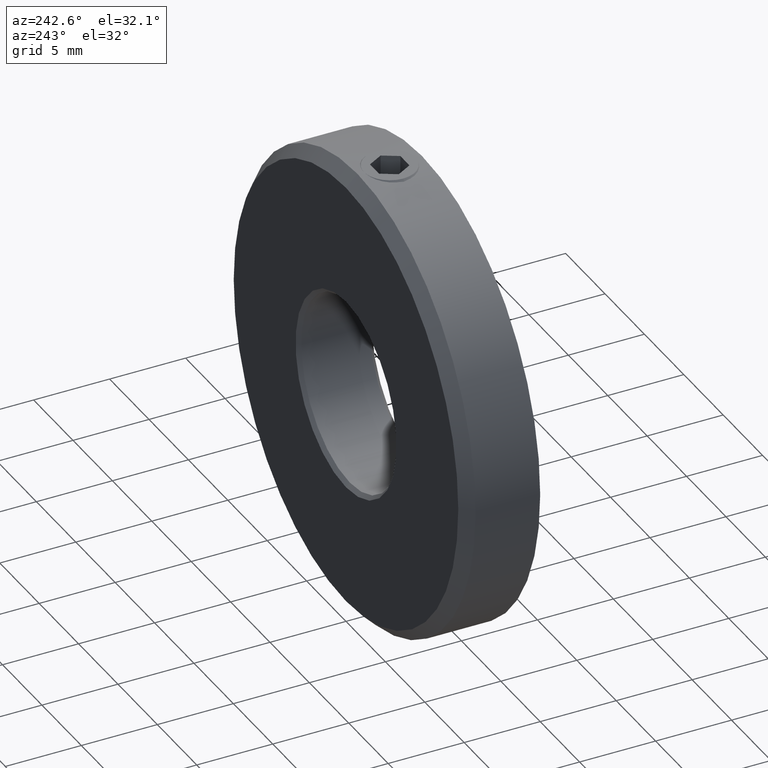
[diagram: clean part render]
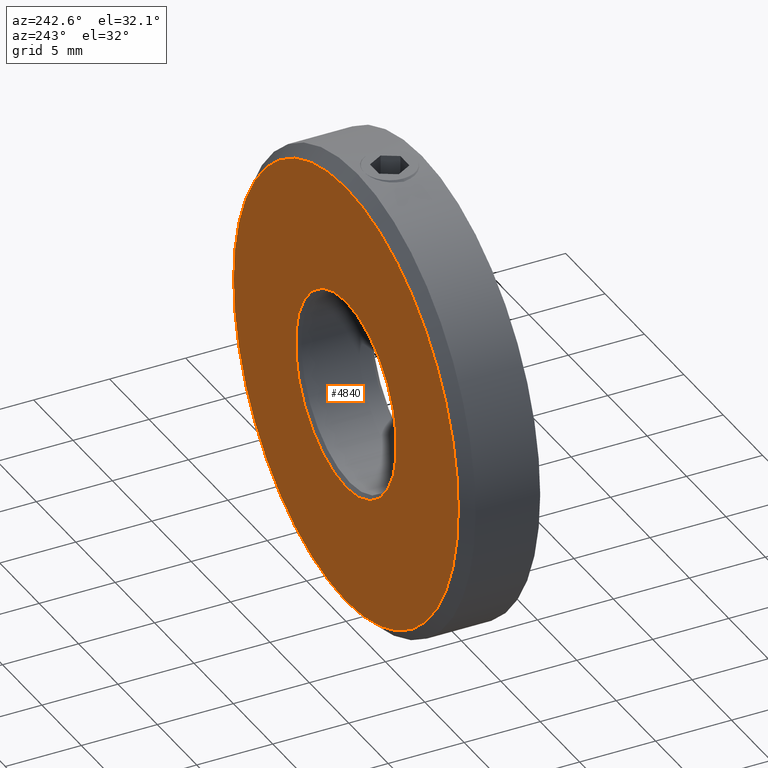
[diagram: same view with one face highlighted and labeled with its STEP entity id]
A machine part, auxiliary view. The second image highlights one B-rep face of the part: STEP entity #4840.
In plain terms, the highlighted planar face has unit normal (0, 1, 0).
Its self-contained STEP definition (entity closure, byte-faithful):
#340 = FACE_BOUND ( 'NONE', #14716, .T. ) ;
#385 = DIRECTION ( 'NONE',  ( 0.000000000000000000, 1.000000000000000000, 0.000000000000000000 ) ) ;
#521 = DIRECTION ( 'NONE',  ( 0.000000000000000000, 0.000000000000000000, 1.000000000000000000 ) ) ;
#536 = DIRECTION ( 'NONE',  ( -0.000000000000000000, -1.000000000000000000, -0.000000000000000000 ) ) ;
#550 = ORIENTED_EDGE ( 'NONE', *, *, #15102, .T. ) ;
#815 = ORIENTED_EDGE ( 'NONE', *, *, #12443, .T. ) ;
#898 = FACE_OUTER_BOUND ( 'NONE', #7330, .T. ) ;
#1017 = DIRECTION ( 'NONE',  ( 0.000000000000000000, 0.000000000000000000, 1.000000000000000000 ) ) ;
#1114 = CARTESIAN_POINT ( 'NONE',  ( 0.000000000000000000, 5.000000000000000000, 0.000000000000000000 ) ) ;
#1285 = ORIENTED_EDGE ( 'NONE', *, *, #3744, .T. ) ;
#1970 = CARTESIAN_POINT ( 'NONE',  ( 0.000000000000000000, 5.000000000000000000, 6.400000000000003020 ) ) ;
#2695 = DIRECTION ( 'NONE',  ( 0.000000000000000000, -0.000000000000000000, 1.000000000000000000 ) ) ;
#2995 = VERTEX_POINT ( 'NONE', #9603 ) ;
#3744 = EDGE_CURVE ( 'NONE', #9450, #13257, #12547, .T. ) ;
#4840 = ADVANCED_FACE ( 'NONE', ( #340, #898 ), #13258, .T. ) ;
#5179 = CARTESIAN_POINT ( 'NONE',  ( 0.000000000000000000, 5.000000000000000000, 0.000000000000000000 ) ) ;
#5351 = AXIS2_PLACEMENT_3D ( 'NONE', #13288, #13183, #521 ) ;
#5581 = AXIS2_PLACEMENT_3D ( 'NONE', #14533, #385, #2695 ) ;
#6170 = AXIS2_PLACEMENT_3D ( 'NONE', #7153, #10673, #13078 ) ;
#7153 = CARTESIAN_POINT ( 'NONE',  ( 0.000000000000000000, 5.000000000000000000, 0.000000000000000000 ) ) ;
#7330 = EDGE_LOOP ( 'NONE', ( #550, #815 ) ) ;
#7566 = AXIS2_PLACEMENT_3D ( 'NONE', #1114, #13768, #1017 ) ;
#7613 = CIRCLE ( 'NONE', #7566, 14.25000000000000533 ) ;
#8006 = AXIS2_PLACEMENT_3D ( 'NONE', #5179, #536, #8735 ) ;
#8735 = DIRECTION ( 'NONE',  ( 0.000000000000000000, 0.000000000000000000, 1.000000000000000000 ) ) ;
#9118 = CARTESIAN_POINT ( 'NONE',  ( 7.837739514543063879E-16, 5.000000000000000000, -6.400000000000003020 ) ) ;
#9450 = VERTEX_POINT ( 'NONE', #9118 ) ;
#9603 = CARTESIAN_POINT ( 'NONE',  ( 0.000000000000000000, 5.000000000000000000, -14.25000000000000533 ) ) ;
#10673 = DIRECTION ( 'NONE',  ( -0.000000000000000000, -1.000000000000000000, -0.000000000000000000 ) ) ;
#12310 = CIRCLE ( 'NONE', #5351, 14.25000000000000533 ) ;
#12430 = ORIENTED_EDGE ( 'NONE', *, *, #13448, .T. ) ;
#12443 = EDGE_CURVE ( 'NONE', #12827, #2995, #7613, .T. ) ;
#12547 = CIRCLE ( 'NONE', #6170, 6.400000000000003020 ) ;
#12827 = VERTEX_POINT ( 'NONE', #14737 ) ;
#13078 = DIRECTION ( 'NONE',  ( 0.000000000000000000, 0.000000000000000000, 1.000000000000000000 ) ) ;
#13183 = DIRECTION ( 'NONE',  ( 0.000000000000000000, 1.000000000000000000, 0.000000000000000000 ) ) ;
#13257 = VERTEX_POINT ( 'NONE', #1970 ) ;
#13258 = PLANE ( 'NONE',  #5581 ) ;
#13271 = CIRCLE ( 'NONE', #8006, 6.400000000000003020 ) ;
#13288 = CARTESIAN_POINT ( 'NONE',  ( 0.000000000000000000, 5.000000000000000000, 0.000000000000000000 ) ) ;
#13448 = EDGE_CURVE ( 'NONE', #13257, #9450, #13271, .T. ) ;
#13768 = DIRECTION ( 'NONE',  ( 0.000000000000000000, 1.000000000000000000, 0.000000000000000000 ) ) ;
#14533 = CARTESIAN_POINT ( 'NONE',  ( 0.000000000000000000, 5.000000000000000000, 0.000000000000000000 ) ) ;
#14716 = EDGE_LOOP ( 'NONE', ( #12430, #1285 ) ) ;
#14737 = CARTESIAN_POINT ( 'NONE',  ( 1.791045943753004303E-15, 5.000000000000000000, 14.25000000000000533 ) ) ;
#15102 = EDGE_CURVE ( 'NONE', #2995, #12827, #12310, .T. ) ;